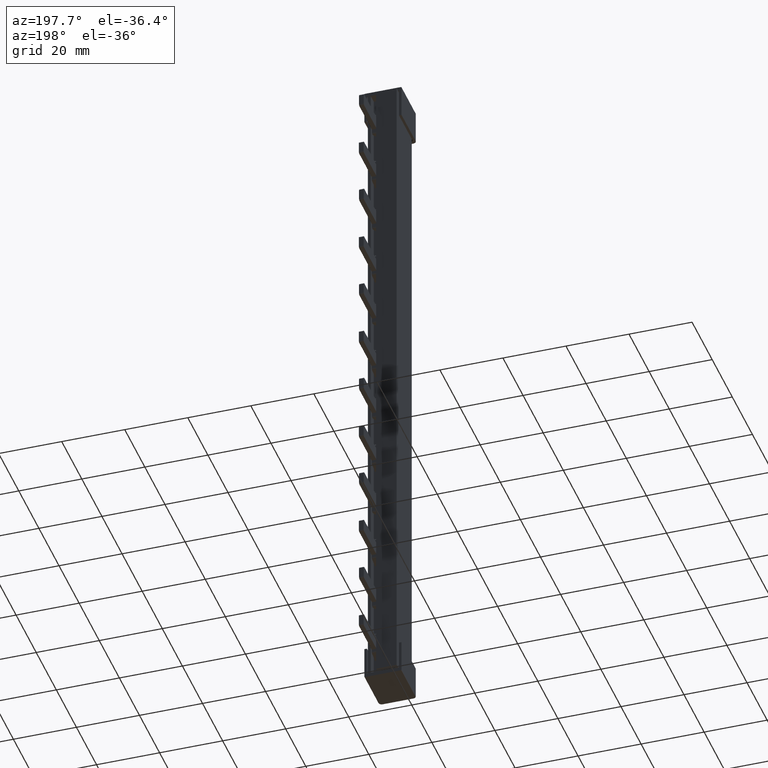
[diagram: clean part render]
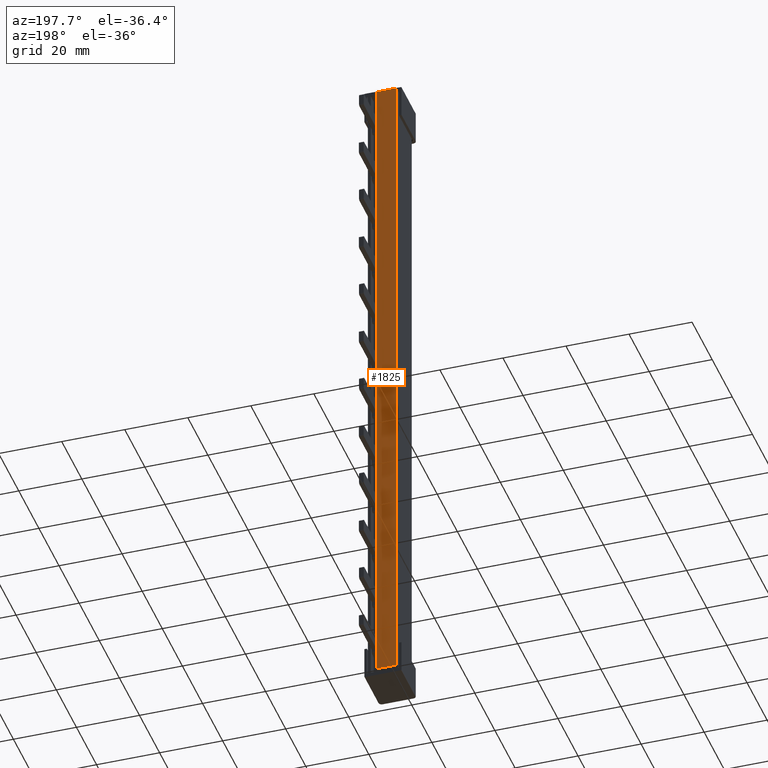
[diagram: same view with one face highlighted and labeled with its STEP entity id]
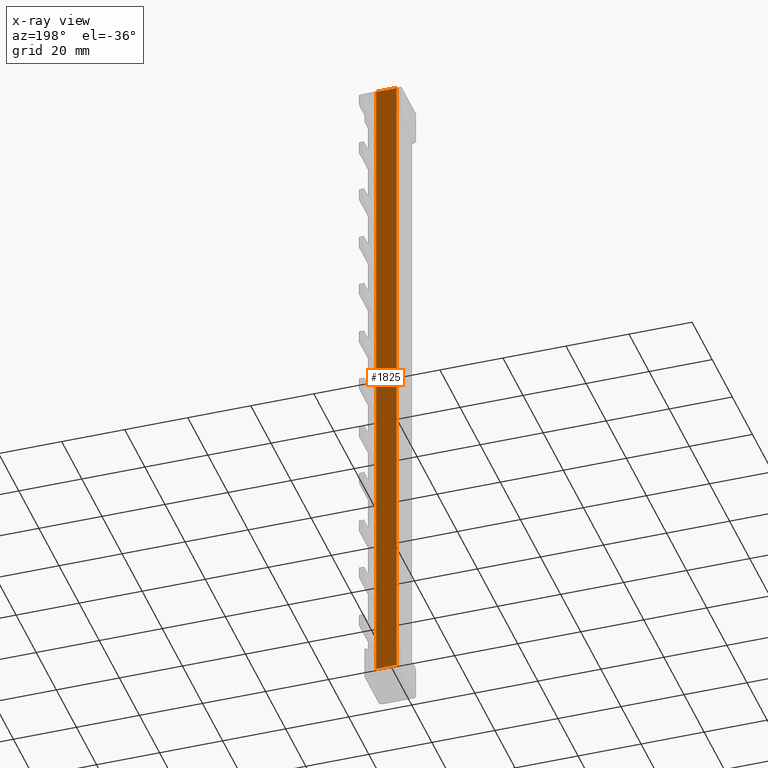
[diagram: x-ray of the same camera — body ghosted, the highlighted face saturated]
A machine part, auxiliary view. The second image highlights one B-rep face of the part: STEP entity #1825.
The next image is the same camera in x-ray: the body ghosted, the highlighted face saturated — about 0% of this face is hidden behind the body in this view.
In plain terms, the highlighted planar face has unit normal (0, -1, 0).
Its self-contained STEP definition (entity closure, byte-faithful):
#113 = CARTESIAN_POINT ( 'NONE',  ( 6.499999999999950300, 14.99999999999998600, 219.0000000000000000 ) ) ;
#122 = LINE ( 'NONE', #113, #19134 ) ;
#1825 = ADVANCED_FACE ( 'NONE', ( #13924 ), #13912, .F. ) ;
#2083 = EDGE_CURVE ( 'NONE', #17499, #17474, #122, .T. ) ;
#2101 = EDGE_CURVE ( 'NONE', #17526, #17499, #2475, .T. ) ;
#2109 = EDGE_CURVE ( 'NONE', #17526, #17575, #2514, .T. ) ;
#2124 = EDGE_CURVE ( 'NONE', #17474, #17575, #2556, .T. ) ;
#2454 = DIRECTION ( 'NONE',  ( 1.000000000000000000, 0.0000000000000000000, 0.0000000000000000000 ) ) ;
#2475 = LINE ( 'NONE', #2479, #19150 ) ;
#2479 = CARTESIAN_POINT ( 'NONE',  ( 6.499999999999950300, 14.99999999999998600, 1.200000000000000000 ) ) ;
#2500 = CARTESIAN_POINT ( 'NONE',  ( 0.0000000000000000000, 14.99999999999998600, 219.0000000000000000 ) ) ;
#2501 = DIRECTION ( 'NONE',  ( -0.0000000000000000000, -0.0000000000000000000, 1.000000000000000000 ) ) ;
#2514 = LINE ( 'NONE', #2500, #19166 ) ;
#2553 = CARTESIAN_POINT ( 'NONE',  ( 6.499999999999950300, 14.99999999999998600, 217.7999999999999800 ) ) ;
#2556 = LINE ( 'NONE', #2553, #19171 ) ;
#2560 = DIRECTION ( 'NONE',  ( -1.000000000000000000, -0.0000000000000000000, -0.0000000000000000000 ) ) ;
#10277 = DIRECTION ( 'NONE',  ( -0.0000000000000000000, 0.0000000000000000000, 1.000000000000000000 ) ) ;
#12199 = EDGE_LOOP ( 'NONE', ( #17726, #17727, #17784, #17744 ) ) ;
#13857 = DIRECTION ( 'NONE',  ( 0.0000000000000000000, -0.0000000000000000000, -1.000000000000000000 ) ) ;
#13912 = PLANE ( 'NONE',  #19709 ) ;
#13924 = FACE_OUTER_BOUND ( 'NONE', #12199, .T. ) ;
#13975 = CARTESIAN_POINT ( 'NONE',  ( 6.499999999999950300, 14.99999999999998600, 219.0000000000000000 ) ) ;
#13990 = DIRECTION ( 'NONE',  ( 0.0000000000000000000, -1.000000000000000000, 0.0000000000000000000 ) ) ;
#17474 = VERTEX_POINT ( 'NONE', #20488 ) ;
#17499 = VERTEX_POINT ( 'NONE', #20432 ) ;
#17526 = VERTEX_POINT ( 'NONE', #20443 ) ;
#17575 = VERTEX_POINT ( 'NONE', #20546 ) ;
#17726 = ORIENTED_EDGE ( 'NONE', *, *, #2124, .F. ) ;
#17727 = ORIENTED_EDGE ( 'NONE', *, *, #2083, .F. ) ;
#17744 = ORIENTED_EDGE ( 'NONE', *, *, #2109, .T. ) ;
#17784 = ORIENTED_EDGE ( 'NONE', *, *, #2101, .F. ) ;
#19134 = VECTOR ( 'NONE', #10277, 1000.000000000000000 ) ;
#19150 = VECTOR ( 'NONE', #2454, 1000.000000000000000 ) ;
#19166 = VECTOR ( 'NONE', #2501, 1000.000000000000000 ) ;
#19171 = VECTOR ( 'NONE', #2560, 1000.000000000000000 ) ;
#19709 = AXIS2_PLACEMENT_3D ( 'NONE', #13975, #13990, #13857 ) ;
#20432 = CARTESIAN_POINT ( 'NONE',  ( 6.499999999999950300, 14.99999999999998600, 1.200000000000000000 ) ) ;
#20443 = CARTESIAN_POINT ( 'NONE',  ( 0.0000000000000000000, 14.99999999999998600, 1.200000000000000000 ) ) ;
#20488 = CARTESIAN_POINT ( 'NONE',  ( 6.499999999999950300, 14.99999999999998600, 217.7999999999999800 ) ) ;
#20546 = CARTESIAN_POINT ( 'NONE',  ( 0.0000000000000000000, 14.99999999999998600, 217.7999999999999800 ) ) ;